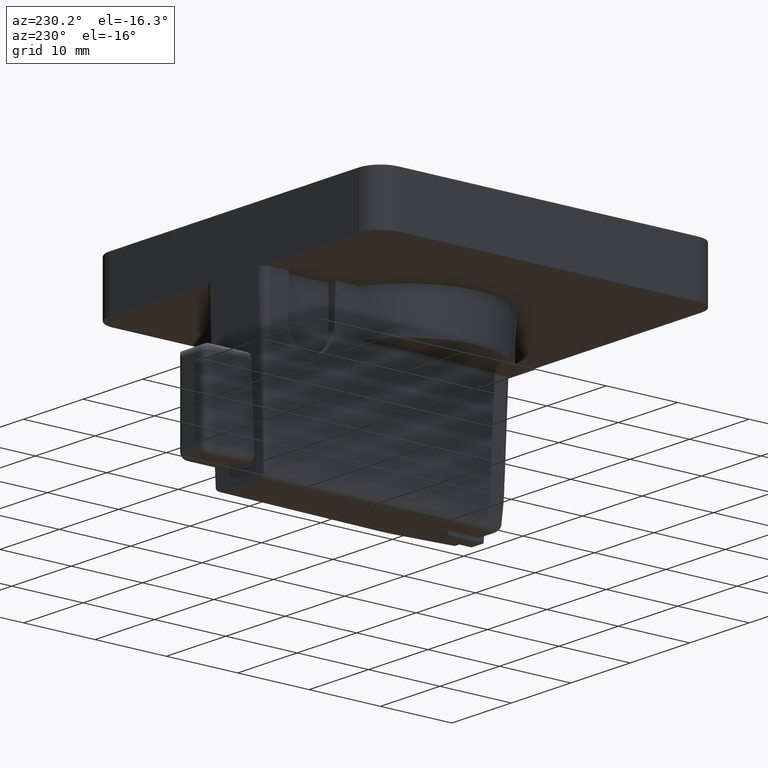
[diagram: clean part render]
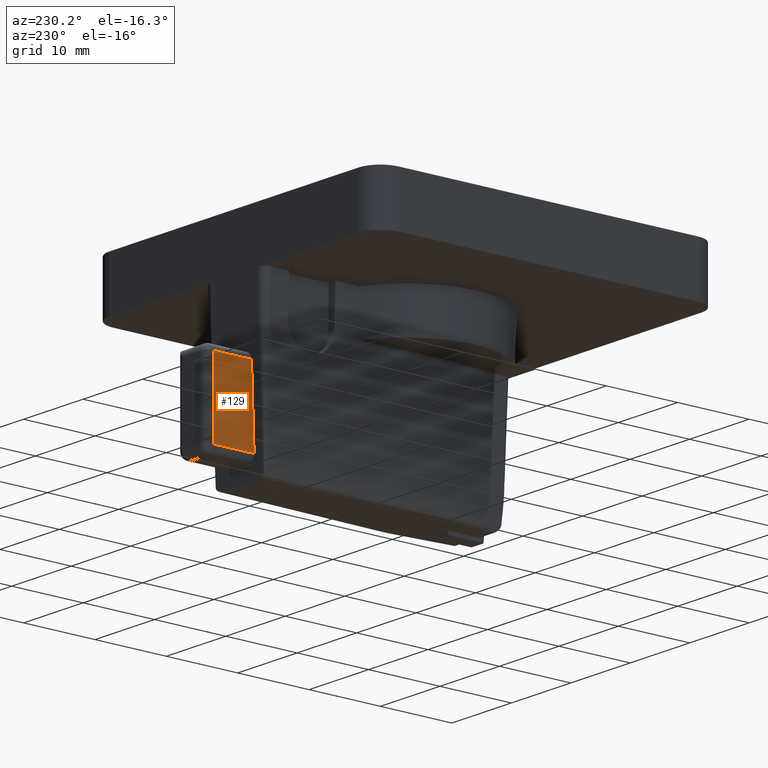
[diagram: same view with one face highlighted and labeled with its STEP entity id]
A machine part, auxiliary view. The second image highlights one B-rep face of the part: STEP entity #129.
In plain terms, the highlighted planar face has unit normal (-1, 0, 0).
Its self-contained STEP definition (entity closure, byte-faithful):
#75=PLANE('',#1231);
#129=ADVANCED_FACE('',(#214),#75,.T.);
#214=FACE_OUTER_BOUND('',#278,.T.);
#278=EDGE_LOOP('',(#551,#552,#553,#554));
#551=ORIENTED_EDGE('',*,*,#876,.T.);
#552=ORIENTED_EDGE('',*,*,#920,.T.);
#553=ORIENTED_EDGE('',*,*,#921,.T.);
#554=ORIENTED_EDGE('',*,*,#922,.T.);
#754=VERTEX_POINT('',#1816);
#755=VERTEX_POINT('',#1817);
#781=VERTEX_POINT('',#1916);
#782=VERTEX_POINT('',#1918);
#876=EDGE_CURVE('',#754,#755,#1008,.T.);
#920=EDGE_CURVE('',#755,#781,#1043,.T.);
#921=EDGE_CURVE('',#781,#782,#1044,.T.);
#922=EDGE_CURVE('',#782,#754,#1045,.T.);
#1008=LINE('',#1815,#1106);
#1043=LINE('',#1915,#1141);
#1044=LINE('',#1917,#1142);
#1045=LINE('',#1919,#1143);
#1106=VECTOR('',#1412,1.);
#1141=VECTOR('',#1497,1.);
#1142=VECTOR('',#1498,1.);
#1143=VECTOR('',#1499,1.);
#1231=AXIS2_PLACEMENT_3D('',#1920,#1500,#1501);
#1412=DIRECTION('',(0.,0.0348994967025009,0.999390827019096));
#1497=DIRECTION('',(0.,1.,0.));
#1498=DIRECTION('',(0.,0.,-1.));
#1499=DIRECTION('',(0.,-1.,0.));
#1500=DIRECTION('',(-1.,0.,0.));
#1501=DIRECTION('',(0.,0.,-1.));
#1815=CARTESIAN_POINT('',(-163.500000000001,-217.,0.));
#1816=CARTESIAN_POINT('',(-163.500000000001,-217.715875774581,-20.5000000000003));
#1817=CARTESIAN_POINT('',(-163.500000000001,-217.349207694918,-10.0000000000003));
#1915=CARTESIAN_POINT('',(-163.500000000001,-222.,-10.0000000000003));
#1916=CARTESIAN_POINT('',(-163.500000000001,-212.,-10.0000000000003));
#1917=CARTESIAN_POINT('',(-163.500000000001,-212.,-21.5000000000003));
#1918=CARTESIAN_POINT('',(-163.500000000001,-212.,-20.5000000000003));
#1919=CARTESIAN_POINT('',(-163.500000000001,-222.,-20.5000000000003));
#1920=CARTESIAN_POINT('',(-163.500000000001,-222.,-21.5000000000003));